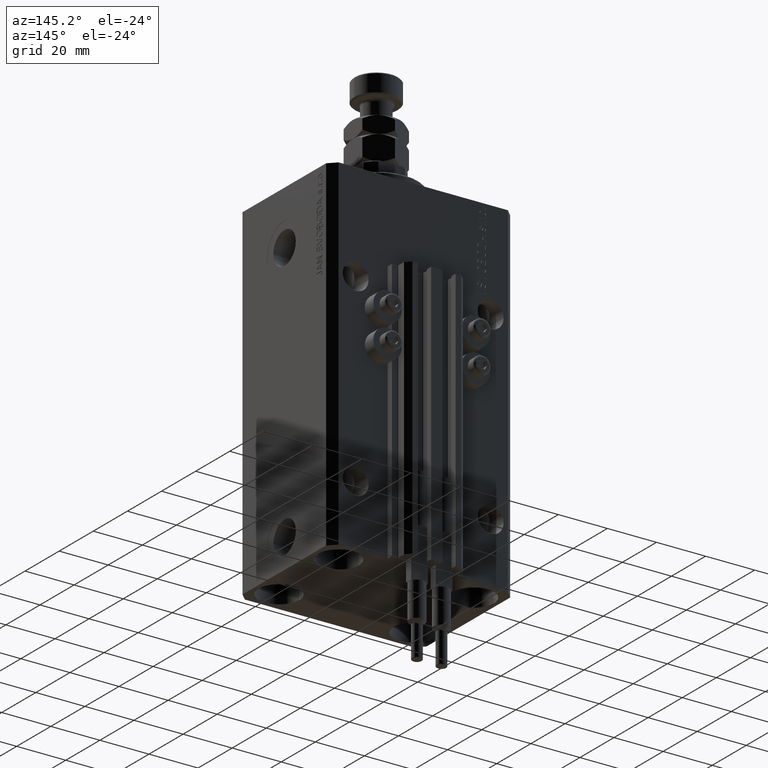
[diagram: clean part render]
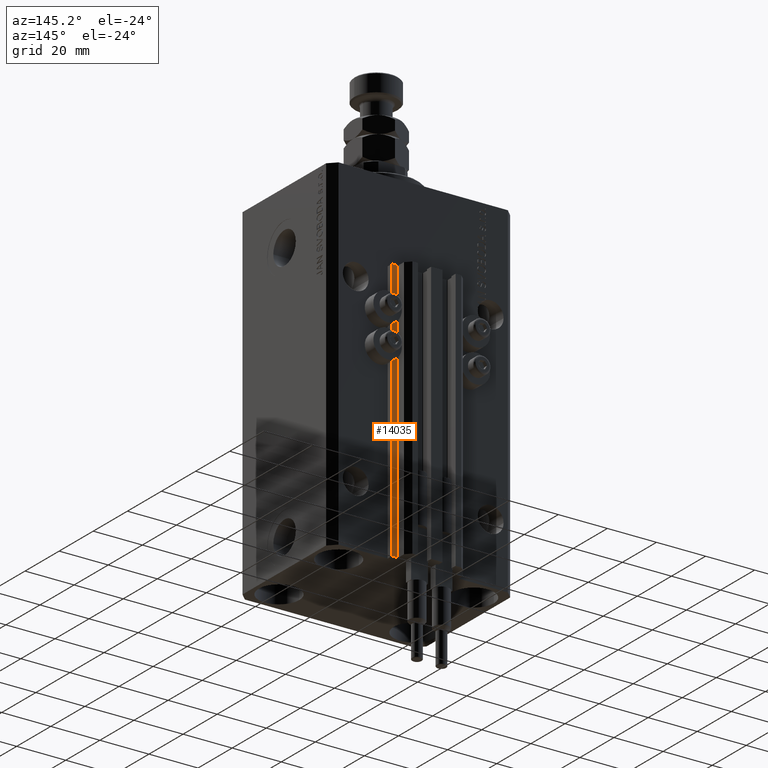
[diagram: same view with one face highlighted and labeled with its STEP entity id]
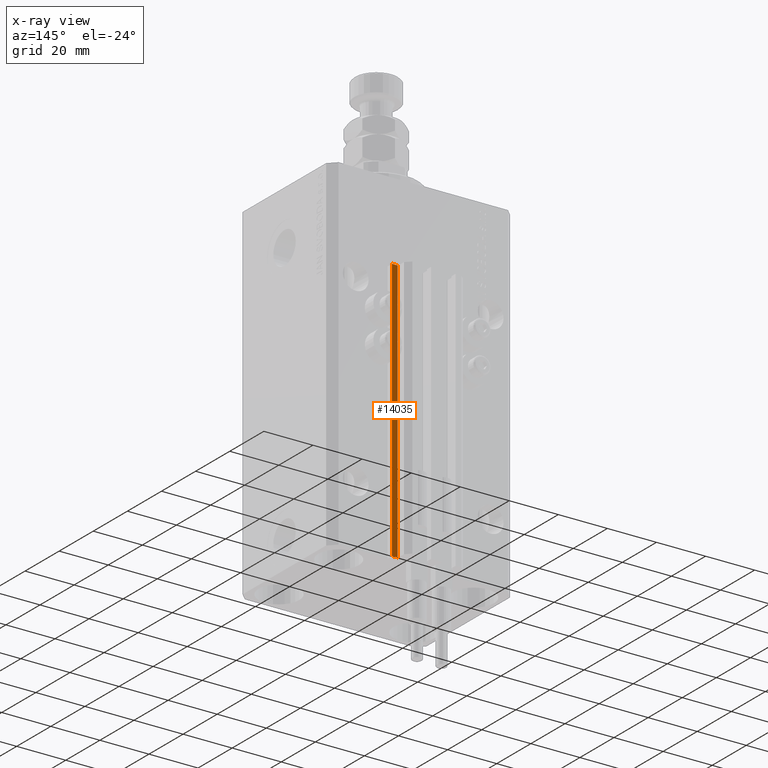
[diagram: x-ray of the same camera — body ghosted, the highlighted face saturated]
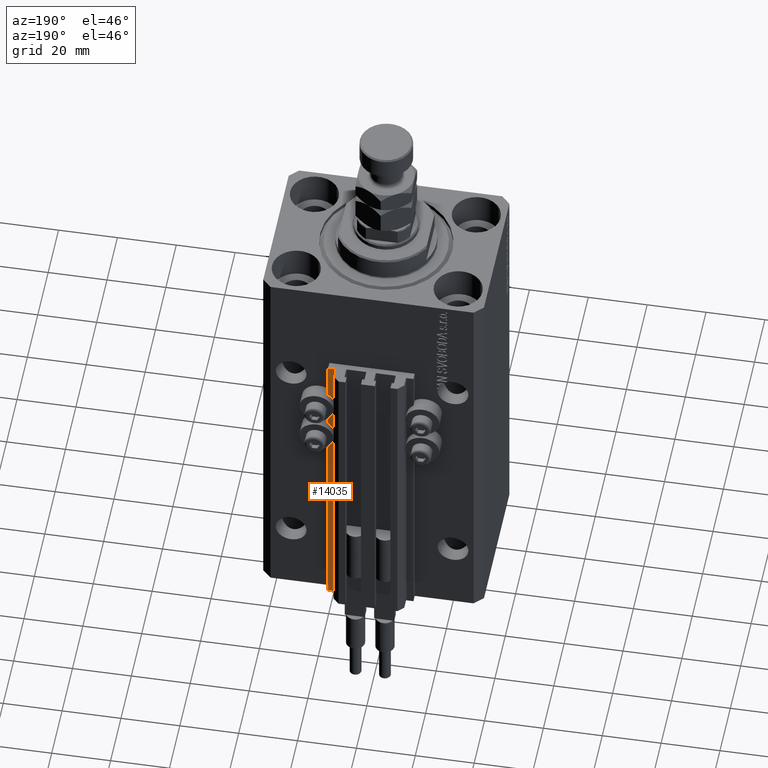
[diagram: same view with one face highlighted and labeled with its STEP entity id]
A machine part, auxiliary view. The second image highlights one B-rep face of the part: STEP entity #14035.
The next image is the same camera in x-ray: the body ghosted, the highlighted face saturated — about 0% of this face is hidden behind the body in this view.
A second angle (auxiliary view) of the same face is appended — the face is thin or edge-on in the first view.
In plain terms, the highlighted planar face has unit normal (0, 1, 0).
Its self-contained STEP definition (entity closure, byte-faithful):
#1530 = ORIENTED_EDGE ( 'NONE', *, *, #35097, .T. ) ;
#2464 = VECTOR ( 'NONE', #32906, 1000.000000000000000 ) ;
#4855 = CARTESIAN_POINT ( 'NONE',  ( 14.49999999999999645, 30.00000000000002487, -140.0000000000000000 ) ) ;
#5187 = CARTESIAN_POINT ( 'NONE',  ( 14.49999999999999645, 30.00000000000002487, -33.00000000000000000 ) ) ;
#5793 = EDGE_LOOP ( 'NONE', ( #32812, #13308, #41605, #1530 ) ) ;
#7319 = LINE ( 'NONE', #9665, #12545 ) ;
#9665 = CARTESIAN_POINT ( 'NONE',  ( 14.49999999999999645, 30.00000000000002487, -140.0000000000000000 ) ) ;
#10418 = DIRECTION ( 'NONE',  ( 0.000000000000000000, 1.000000000000000000, -0.000000000000000000 ) ) ;
#12545 = VECTOR ( 'NONE', #37166, 1000.000000000000000 ) ;
#12829 = LINE ( 'NONE', #31757, #33336 ) ;
#13308 = ORIENTED_EDGE ( 'NONE', *, *, #37021, .F. ) ;
#14035 = ADVANCED_FACE ( 'NONE', ( #18477 ), #29818, .T. ) ;
#16579 = DIRECTION ( 'NONE',  ( 0.000000000000000000, 0.000000000000000000, 1.000000000000000000 ) ) ;
#18477 = FACE_OUTER_BOUND ( 'NONE', #5793, .T. ) ;
#19482 = VERTEX_POINT ( 'NONE', #4855 ) ;
#22508 = DIRECTION ( 'NONE',  ( 0.000000000000000000, 0.000000000000000000, 1.000000000000000000 ) ) ;
#24067 = AXIS2_PLACEMENT_3D ( 'NONE', #33872, #10418, #22508 ) ;
#26402 = CARTESIAN_POINT ( 'NONE',  ( 12.20000000000000107, 30.00000000000002487, -33.00000000000000000 ) ) ;
#28362 = LINE ( 'NONE', #5187, #2464 ) ;
#29801 = CARTESIAN_POINT ( 'NONE',  ( 12.20000000000000107, 30.00000000000002487, -140.0000000000000000 ) ) ;
#29818 = PLANE ( 'NONE',  #24067 ) ;
#30666 = VERTEX_POINT ( 'NONE', #29801 ) ;
#31757 = CARTESIAN_POINT ( 'NONE',  ( 12.20000000000000107, 30.00000000000002487, -140.0000000000000000 ) ) ;
#32812 = ORIENTED_EDGE ( 'NONE', *, *, #47254, .F. ) ;
#32906 = DIRECTION ( 'NONE',  ( -1.000000000000000000, 0.000000000000000000, 0.000000000000000000 ) ) ;
#33336 = VECTOR ( 'NONE', #46387, 1000.000000000000000 ) ;
#33872 = CARTESIAN_POINT ( 'NONE',  ( 14.49999999999999645, 30.00000000000002487, -140.0000000000000000 ) ) ;
#35097 = EDGE_CURVE ( 'NONE', #30666, #40605, #12829, .T. ) ;
#37021 = EDGE_CURVE ( 'NONE', #19482, #42609, #46834, .T. ) ;
#37166 = DIRECTION ( 'NONE',  ( -1.000000000000000000, 0.000000000000000000, 0.000000000000000000 ) ) ;
#39530 = CARTESIAN_POINT ( 'NONE',  ( 14.49999999999999645, 30.00000000000002487, -33.00000000000000000 ) ) ;
#40032 = CARTESIAN_POINT ( 'NONE',  ( 14.49999999999999645, 30.00000000000002487, -140.0000000000000000 ) ) ;
#40605 = VERTEX_POINT ( 'NONE', #26402 ) ;
#41467 = VECTOR ( 'NONE', #16579, 1000.000000000000000 ) ;
#41605 = ORIENTED_EDGE ( 'NONE', *, *, #42177, .T. ) ;
#42177 = EDGE_CURVE ( 'NONE', #19482, #30666, #7319, .T. ) ;
#42609 = VERTEX_POINT ( 'NONE', #39530 ) ;
#46387 = DIRECTION ( 'NONE',  ( 0.000000000000000000, 0.000000000000000000, 1.000000000000000000 ) ) ;
#46834 = LINE ( 'NONE', #40032, #41467 ) ;
#47254 = EDGE_CURVE ( 'NONE', #42609, #40605, #28362, .T. ) ;